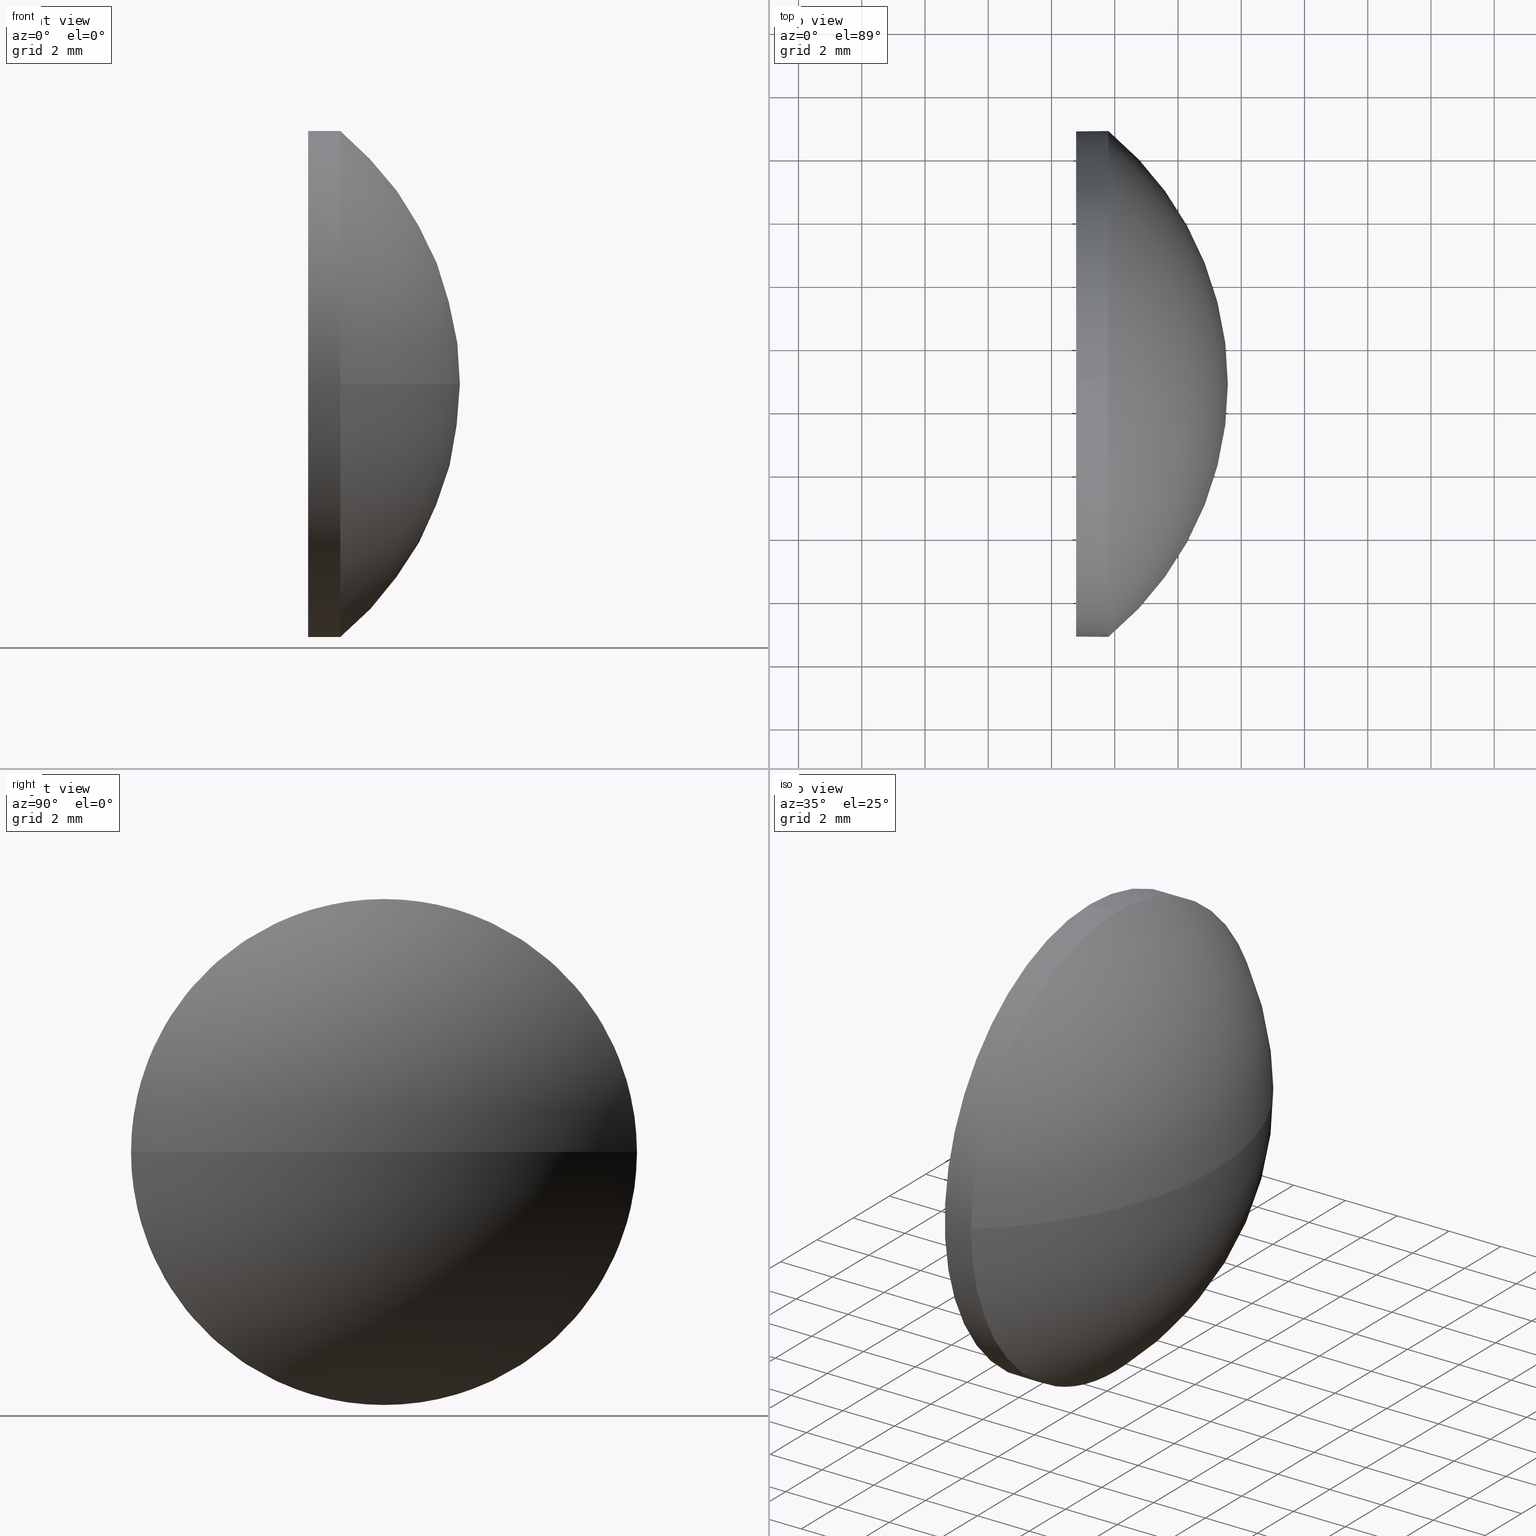
[diagram: canonical four-view strip — front | top / right | iso, engineering-drawing reading convention]
A machine part, canonical four-view strip (front | top / right | iso — engineering-drawing reading convention). The complete STEP part file that produces these views, byte-faithful:
ISO-10303-21;
HEADER;
FILE_DESCRIPTION (( 'STEP AP214' ),
    '1' );
FILE_NAME ('100025.STEP',
    '2019-04-22T07:42:25',
    ( '' ),
    ( '' ),
    'SwSTEP 2.0',
    'SolidWorks 2016',
    '' );
FILE_SCHEMA (( 'AUTOMOTIVE_DESIGN' ));
ENDSEC;

DATA;
#1 = DIRECTION ( 'NONE',  ( -1.000000000000000000, -0.0000000000000000000, -0.0000000000000000000 ) ) ;
#2 = EDGE_CURVE ( 'NONE', #122, #46, #61, .T. ) ;
#3 = ORIENTED_EDGE ( 'NONE', *, *, #84, .T. ) ;
#4 = DIRECTION ( 'NONE',  ( 0.0000000000000000000, 0.0000000000000000000, 1.000000000000000000 ) ) ;
#5 = CARTESIAN_POINT ( 'NONE',  ( 351.7981997499039200, 126.8000505351327700, 0.0000000000000000000 ) ) ;
#6 = CARTESIAN_POINT ( 'NONE',  ( 345.2225912842954500, 126.8000505351327700, 0.0000000000000000000 ) ) ;
#7 = MECHANICAL_DESIGN_GEOMETRIC_PRESENTATION_REPRESENTATION (  '', ( #59 ), #45 ) ;
#8 = ORIENTED_EDGE ( 'NONE', *, *, #113, .F. ) ;
#9 = DIRECTION ( 'NONE',  ( 1.000000000000000000, 0.0000000000000000000, 0.0000000000000000000 ) ) ;
#10 = PRESENTATION_STYLE_ASSIGNMENT (( #115 ) ) ;
#11 = ORIENTED_EDGE ( 'NONE', *, *, #30, .F. ) ;
#12 = FACE_OUTER_BOUND ( 'NONE', #34, .T. ) ;
#13 = PRODUCT_DEFINITION_SHAPE ( 'NONE', 'NONE',  #17 ) ;
#14 = DIRECTION ( 'NONE',  ( 0.0000000000000000000, 0.0000000000000000000, 1.000000000000000000 ) ) ;
#15 = CIRCLE ( 'NONE', #102, 7.999999999999979600 ) ;
#16 = SURFACE_SIDE_STYLE ('',( #125 ) ) ;
#17 = PRODUCT_DEFINITION ( 'δ֪', '', #183, #105 ) ;
#18 = CARTESIAN_POINT ( 'NONE',  ( 350.7781997499039300, 126.8000505351327700, 0.0000000000000000000 ) ) ;
#19 = EDGE_CURVE ( 'NONE', #46, #107, #103, .T. ) ;
#20 = FACE_OUTER_BOUND ( 'NONE', #152, .T. ) ;
#21 = DIRECTION ( 'NONE',  ( -1.000000000000000000, -0.0000000000000000000, -0.0000000000000000000 ) ) ;
#22 = DIRECTION ( 'NONE',  ( -1.000000000000000000, -0.0000000000000000000, -0.0000000000000000000 ) ) ;
#23 = CARTESIAN_POINT ( 'NONE',  ( 351.7981997499039200, 134.8000505351327500, 0.0000000000000000000 ) ) ;
#24 = APPLICATION_CONTEXT ( 'automotive_design' ) ;
#25 = SURFACE_STYLE_FILL_AREA ( #156 ) ;
#26 = VERTEX_POINT ( 'NONE', #60 ) ;
#27 = VECTOR ( 'NONE', #80, 1000.000000000000000 ) ;
#28 = EDGE_CURVE ( 'NONE', #141, #26, #54, .T. ) ;
#29 = ORIENTED_EDGE ( 'NONE', *, *, #70, .F. ) ;
#30 = EDGE_CURVE ( 'NONE', #107, #46, #170, .T. ) ;
#31 = ORIENTED_EDGE ( 'NONE', *, *, #2, .F. ) ;
#32 =( NAMED_UNIT ( * ) PLANE_ANGLE_UNIT ( ) SI_UNIT ( $, .RADIAN. ) );
#33 = CARTESIAN_POINT ( 'NONE',  ( 332.1518566480925200, 126.8000505351327700, -7.999999999999979600 ) ) ;
#34 = EDGE_LOOP ( 'NONE', ( #173, #175, #174, #109, #11 ) ) ;
#35 = CARTESIAN_POINT ( 'NONE',  ( 332.1518566480925200, 126.8000505351327700, 0.0000000000000000000 ) ) ;
#36 = EDGE_CURVE ( 'NONE', #42, #122, #85, .T. ) ;
#37 = PRODUCT_CONTEXT ( 'NONE', #181, 'mechanical' ) ;
#38 = ORIENTED_EDGE ( 'NONE', *, *, #70, .T. ) ;
#39 = EDGE_CURVE ( 'NONE', #26, #42, #15, .T. ) ;
#40 = COLOUR_RGB ( '',1.000000000000000000, 1.000000000000000000, 1.000000000000000000 ) ;
#41 = PRODUCT_RELATED_PRODUCT_CATEGORY ( 'part', '', ( #127 ) ) ;
#42 = VERTEX_POINT ( 'NONE', #146 ) ;
#43 = AXIS2_PLACEMENT_3D ( 'NONE', #134, #50, #52 ) ;
#44 = DIRECTION ( 'NONE',  ( -1.000000000000000000, -0.0000000000000000000, -0.0000000000000000000 ) ) ;
#45 =( GEOMETRIC_REPRESENTATION_CONTEXT ( 3 ) GLOBAL_UNCERTAINTY_ASSIGNED_CONTEXT ( ( #186 ) ) GLOBAL_UNIT_ASSIGNED_CONTEXT ( ( #66, #32, #47 ) ) REPRESENTATION_CONTEXT ( 'NONE', 'WORKASPACE' ) );
#46 = VERTEX_POINT ( 'NONE', #99 ) ;
#47 =( NAMED_UNIT ( * ) SI_UNIT ( $, .STERADIAN. ) SOLID_ANGLE_UNIT ( ) );
#48 = AXIS2_PLACEMENT_3D ( 'NONE', #130, #136, #176 ) ;
#49 = ADVANCED_FACE ( 'NONE', ( #97 ), #147, .T. ) ;
#50 = DIRECTION ( 'NONE',  ( -1.000000000000000000, -0.0000000000000000000, -0.0000000000000000000 ) ) ;
#51 = PRESENTATION_STYLE_ASSIGNMENT (( #124 ) ) ;
#52 = DIRECTION ( 'NONE',  ( 0.0000000000000000000, 0.0000000000000000000, 1.000000000000000000 ) ) ;
#53 = DIRECTION ( 'NONE',  ( 0.0000000000000000000, 0.0000000000000000000, 1.000000000000000000 ) ) ;
#54 = CIRCLE ( 'NONE', #79, 7.999999999999979600 ) ;
#55 = CARTESIAN_POINT ( 'NONE',  ( 332.1518566480925200, 126.8000505351327700, 0.0000000000000000000 ) ) ;
#56 = DIRECTION ( 'NONE',  ( -1.000000000000000000, -0.0000000000000000000, -0.0000000000000000000 ) ) ;
#57 = CIRCLE ( 'NONE', #135, 10.35560846560845700 ) ;
#58 = AXIS2_PLACEMENT_3D ( 'NONE', #18, #166, #167 ) ;
#59 = STYLED_ITEM ( 'NONE', ( #10 ), #88 ) ;
#60 = CARTESIAN_POINT ( 'NONE',  ( 351.7981997499039200, 126.8000505351327700, -7.999999999999979600 ) ) ;
#61 = LINE ( 'NONE', #129, #89 ) ;
#62 = CARTESIAN_POINT ( 'NONE',  ( 350.7781997499039300, 126.8000505351327700, 0.0000000000000000000 ) ) ;
#63 = FILL_AREA_STYLE ('',( #150 ) ) ;
#64 = DIRECTION ( 'NONE',  ( 0.0000000000000000000, 0.0000000000000000000, 1.000000000000000000 ) ) ;
#65 = CARTESIAN_POINT ( 'NONE',  ( 351.7981997499039200, 126.8000505351327700, 0.0000000000000000000 ) ) ;
#66 =( LENGTH_UNIT ( ) NAMED_UNIT ( * ) SI_UNIT ( .MILLI., .METRE. ) );
#67 = EDGE_LOOP ( 'NONE', ( #8, #38, #98, #144 ) ) ;
#68 =( GEOMETRIC_REPRESENTATION_CONTEXT ( 3 ) GLOBAL_UNCERTAINTY_ASSIGNED_CONTEXT ( ( #112 ) ) GLOBAL_UNIT_ASSIGNED_CONTEXT ( ( #106, #81, #121 ) ) REPRESENTATION_CONTEXT ( 'NONE', 'WORKASPACE' ) );
#69 = EDGE_LOOP ( 'NONE', ( #29, #131, #137, #160 ) ) ;
#70 = EDGE_CURVE ( 'NONE', #158, #42, #114, .T. ) ;
#71 = AXIS2_PLACEMENT_3D ( 'NONE', #55, #56, #169 ) ;
#72 = ORIENTED_EDGE ( 'NONE', *, *, #19, .F. ) ;
#73 = ORIENTED_EDGE ( 'NONE', *, *, #28, .T. ) ;
#74 = ORIENTED_EDGE ( 'NONE', *, *, #142, .T. ) ;
#75 = DIRECTION ( 'NONE',  ( -0.0000000000000000000, 0.0000000000000000000, 1.000000000000000000 ) ) ;
#76 = DIRECTION ( 'NONE',  ( -1.000000000000000000, -0.0000000000000000000, -0.0000000000000000000 ) ) ;
#77 = PRESENTATION_LAYER_ASSIGNMENT (  '', '', ( #59 ) ) ;
#78 = CARTESIAN_POINT ( 'NONE',  ( 351.7981997499039200, 126.8000505351327700, 7.999999999999979600 ) ) ;
#79 = AXIS2_PLACEMENT_3D ( 'NONE', #163, #161, #14 ) ;
#80 = DIRECTION ( 'NONE',  ( -1.000000000000000000, -0.0000000000000000000, -0.0000000000000000000 ) ) ;
#81 =( NAMED_UNIT ( * ) PLANE_ANGLE_UNIT ( ) SI_UNIT ( $, .RADIAN. ) );
#82 = STYLED_ITEM ( 'NONE', ( #51 ), #101 ) ;
#83 = SPHERICAL_SURFACE ( 'NONE', #162, 10.35560846560845000 ) ;
#84 = EDGE_CURVE ( 'NONE', #122, #141, #128, .T. ) ;
#85 = CIRCLE ( 'NONE', #95, 7.999999999999979600 ) ;
#86 = DIRECTION ( 'NONE',  ( 0.0000000000000000000, 1.000000000000000000, 1.224646799147352500E-016 ) ) ;
#87 = DIRECTION ( 'NONE',  ( 0.0000000000000000000, 1.000000000000000000, 0.0000000000000000000 ) ) ;
#88 = MANIFOLD_SOLID_BREP ( '��ת1', #185 ) ;
#89 = VECTOR ( 'NONE', #1, 1000.000000000000000 ) ;
#90 = PRESENTATION_LAYER_ASSIGNMENT (  '', '', ( #82 ) ) ;
#91 = LINE ( 'NONE', #33, #27 ) ;
#92 = APPLICATION_PROTOCOL_DEFINITION ( 'draft international standard', 'automotive_design', 1998, #24 ) ;
#93 =( NAMED_UNIT ( * ) SI_UNIT ( $, .STERADIAN. ) SOLID_ANGLE_UNIT ( ) );
#94 = ORIENTED_EDGE ( 'NONE', *, *, #30, .T. ) ;
#95 = AXIS2_PLACEMENT_3D ( 'NONE', #5, #22, #4 ) ;
#96 = AXIS2_PLACEMENT_3D ( 'NONE', #62, #44, #143 ) ;
#97 = FACE_OUTER_BOUND ( 'NONE', #69, .T. ) ;
#98 = ORIENTED_EDGE ( 'NONE', *, *, #39, .F. ) ;
#99 = CARTESIAN_POINT ( 'NONE',  ( 350.7781997499039300, 126.8000505351327700, 7.999999999999979600 ) ) ;
#100 = ADVANCED_FACE ( 'NONE', ( #111 ), #149, .F. ) ;
#101 = ADVANCED_BREP_SHAPE_REPRESENTATION ( '100025', ( #88, #108 ), #68 ) ;
#102 = AXIS2_PLACEMENT_3D ( 'NONE', #118, #153, #133 ) ;
#103 = CIRCLE ( 'NONE', #96, 7.999999999999979600 ) ;
#104 = DIRECTION ( 'NONE',  ( 0.0000000000000000000, 0.0000000000000000000, 1.000000000000000000 ) ) ;
#105 = PRODUCT_DEFINITION_CONTEXT ( 'detailed design', #24, 'design' ) ;
#106 =( LENGTH_UNIT ( ) NAMED_UNIT ( * ) SI_UNIT ( .MILLI., .METRE. ) );
#107 = VERTEX_POINT ( 'NONE', #164 ) ;
#108 = AXIS2_PLACEMENT_3D ( 'NONE', #139, #104, #9 ) ;
#109 = ORIENTED_EDGE ( 'NONE', *, *, #2, .T. ) ;
#110 = MECHANICAL_DESIGN_GEOMETRIC_PRESENTATION_REPRESENTATION (  '', ( #82 ), #120 ) ;
#111 = FACE_OUTER_BOUND ( 'NONE', #184, .T. ) ;
#112 = UNCERTAINTY_MEASURE_WITH_UNIT (LENGTH_MEASURE( 1.000000000000000100E-005 ), #106, 'distance_accuracy_value', 'NONE');
#113 = EDGE_CURVE ( 'NONE', #158, #141, #57, .T. ) ;
#114 = CIRCLE ( 'NONE', #154, 10.35560846560845700 ) ;
#115 = SURFACE_STYLE_USAGE ( .BOTH. , #16 ) ;
#116 = DIRECTION ( 'NONE',  ( 1.000000000000000000, 0.0000000000000000000, 0.0000000000000000000 ) ) ;
#117 = COLOUR_RGB ( '',1.000000000000000000, 1.000000000000000000, 1.000000000000000000 ) ;
#118 = CARTESIAN_POINT ( 'NONE',  ( 351.7981997499039200, 126.8000505351327700, 0.0000000000000000000 ) ) ;
#119 = DIRECTION ( 'NONE',  ( -0.0000000000000000000, 0.0000000000000000000, -1.000000000000000000 ) ) ;
#120 =( GEOMETRIC_REPRESENTATION_CONTEXT ( 3 ) GLOBAL_UNCERTAINTY_ASSIGNED_CONTEXT ( ( #157 ) ) GLOBAL_UNIT_ASSIGNED_CONTEXT ( ( #138, #182, #93 ) ) REPRESENTATION_CONTEXT ( 'NONE', 'WORKASPACE' ) );
#121 =( NAMED_UNIT ( * ) SI_UNIT ( $, .STERADIAN. ) SOLID_ANGLE_UNIT ( ) );
#122 = VERTEX_POINT ( 'NONE', #78 ) ;
#123 = SURFACE_SIDE_STYLE ('',( #25 ) ) ;
#124 = SURFACE_STYLE_USAGE ( .BOTH. , #123 ) ;
#125 = SURFACE_STYLE_FILL_AREA ( #63 ) ;
#126 = AXIS2_PLACEMENT_3D ( 'NONE', #65, #21, #64 ) ;
#127 = PRODUCT ( '100025', '100025', '', ( #37 ) ) ;
#128 = CIRCLE ( 'NONE', #126, 7.999999999999979600 ) ;
#129 = CARTESIAN_POINT ( 'NONE',  ( 332.1518566480925200, 126.8000505351327700, 7.999999999999979600 ) ) ;
#130 = CARTESIAN_POINT ( 'NONE',  ( 345.2225912842954500, 126.8000505351327700, 0.0000000000000000000 ) ) ;
#131 = ORIENTED_EDGE ( 'NONE', *, *, #113, .T. ) ;
#132 = CARTESIAN_POINT ( 'NONE',  ( 355.5781997499038900, 126.8000505351327700, 0.0000000000000000000 ) ) ;
#133 = DIRECTION ( 'NONE',  ( 0.0000000000000000000, 0.0000000000000000000, 1.000000000000000000 ) ) ;
#134 = CARTESIAN_POINT ( 'NONE',  ( 350.7781997499039300, 126.8000505351327700, 0.0000000000000000000 ) ) ;
#135 = AXIS2_PLACEMENT_3D ( 'NONE', #179, #75, #116 ) ;
#136 = DIRECTION ( 'NONE',  ( -0.0000000000000000000, 0.0000000000000000000, -1.000000000000000000 ) ) ;
#137 = ORIENTED_EDGE ( 'NONE', *, *, #84, .F. ) ;
#138 =( LENGTH_UNIT ( ) NAMED_UNIT ( * ) SI_UNIT ( .MILLI., .METRE. ) );
#139 = CARTESIAN_POINT ( 'NONE',  ( 0.0000000000000000000, 0.0000000000000000000, 0.0000000000000000000 ) ) ;
#140 = CYLINDRICAL_SURFACE ( 'NONE', #71, 7.999999999999979600 ) ;
#141 = VERTEX_POINT ( 'NONE', #23 ) ;
#142 = EDGE_CURVE ( 'NONE', #26, #107, #91, .T. ) ;
#143 = DIRECTION ( 'NONE',  ( 0.0000000000000000000, 0.0000000000000000000, 1.000000000000000000 ) ) ;
#144 = ORIENTED_EDGE ( 'NONE', *, *, #28, .F. ) ;
#145 = AXIS2_PLACEMENT_3D ( 'NONE', #35, #76, #53 ) ;
#146 = CARTESIAN_POINT ( 'NONE',  ( 351.7981997499039200, 118.8000505351327800, -9.797174393178807900E-016 ) ) ;
#147 = SPHERICAL_SURFACE ( 'NONE', #48, 10.35560846560845000 ) ;
#148 = FACE_OUTER_BOUND ( 'NONE', #67, .T. ) ;
#149 = PLANE ( 'NONE',  #58 ) ;
#150 = FILL_AREA_STYLE_COLOUR ( '', #40 ) ;
#151 = CARTESIAN_POINT ( 'NONE',  ( 345.2225912842954500, 126.8000505351327700, 0.0000000000000000000 ) ) ;
#152 = EDGE_LOOP ( 'NONE', ( #73, #74, #72, #31, #3 ) ) ;
#153 = DIRECTION ( 'NONE',  ( -1.000000000000000000, -0.0000000000000000000, -0.0000000000000000000 ) ) ;
#154 = AXIS2_PLACEMENT_3D ( 'NONE', #151, #177, #86 ) ;
#155 = FILL_AREA_STYLE_COLOUR ( '', #117 ) ;
#156 = FILL_AREA_STYLE ('',( #155 ) ) ;
#157 = UNCERTAINTY_MEASURE_WITH_UNIT (LENGTH_MEASURE( 1.000000000000000100E-005 ), #138, 'distance_accuracy_value', 'NONE');
#158 = VERTEX_POINT ( 'NONE', #132 ) ;
#159 = CYLINDRICAL_SURFACE ( 'NONE', #145, 7.999999999999979600 ) ;
#160 = ORIENTED_EDGE ( 'NONE', *, *, #36, .F. ) ;
#161 = DIRECTION ( 'NONE',  ( -1.000000000000000000, -0.0000000000000000000, -0.0000000000000000000 ) ) ;
#162 = AXIS2_PLACEMENT_3D ( 'NONE', #6, #119, #87 ) ;
#163 = CARTESIAN_POINT ( 'NONE',  ( 351.7981997499039200, 126.8000505351327700, 0.0000000000000000000 ) ) ;
#164 = CARTESIAN_POINT ( 'NONE',  ( 350.7781997499039300, 126.8000505351327700, -7.999999999999979600 ) ) ;
#165 = ADVANCED_FACE ( 'NONE', ( #148 ), #83, .T. ) ;
#166 = DIRECTION ( 'NONE',  ( 1.000000000000000000, 0.0000000000000000000, 0.0000000000000000000 ) ) ;
#167 = DIRECTION ( 'NONE',  ( 0.0000000000000000000, 0.0000000000000000000, -1.000000000000000000 ) ) ;
#168 = ADVANCED_FACE ( 'NONE', ( #20 ), #159, .T. ) ;
#169 = DIRECTION ( 'NONE',  ( 0.0000000000000000000, 0.0000000000000000000, 1.000000000000000000 ) ) ;
#170 = CIRCLE ( 'NONE', #43, 7.999999999999979600 ) ;
#171 = APPLICATION_PROTOCOL_DEFINITION ( 'draft international standard', 'automotive_design', 1998, #181 ) ;
#172 = SHAPE_DEFINITION_REPRESENTATION ( #13, #101 ) ;
#173 = ORIENTED_EDGE ( 'NONE', *, *, #142, .F. ) ;
#174 = ORIENTED_EDGE ( 'NONE', *, *, #36, .T. ) ;
#175 = ORIENTED_EDGE ( 'NONE', *, *, #39, .T. ) ;
#176 = DIRECTION ( 'NONE',  ( 0.0000000000000000000, 1.000000000000000000, 0.0000000000000000000 ) ) ;
#177 = DIRECTION ( 'NONE',  ( 0.0000000000000000000, 1.224646799147353200E-016, -1.000000000000000000 ) ) ;
#178 = ADVANCED_FACE ( 'NONE', ( #12 ), #140, .T. ) ;
#179 = CARTESIAN_POINT ( 'NONE',  ( 345.2225912842954500, 126.8000505351327700, 0.0000000000000000000 ) ) ;
#180 = ORIENTED_EDGE ( 'NONE', *, *, #19, .T. ) ;
#181 = APPLICATION_CONTEXT ( 'automotive_design' ) ;
#182 =( NAMED_UNIT ( * ) PLANE_ANGLE_UNIT ( ) SI_UNIT ( $, .RADIAN. ) );
#183 = PRODUCT_DEFINITION_FORMATION_WITH_SPECIFIED_SOURCE ( '�κ�', '', #127, .NOT_KNOWN. ) ;
#184 = EDGE_LOOP ( 'NONE', ( #180, #94 ) ) ;
#185 = CLOSED_SHELL ( 'NONE', ( #168, #165, #49, #178, #100 ) ) ;
#186 = UNCERTAINTY_MEASURE_WITH_UNIT (LENGTH_MEASURE( 1.000000000000000100E-005 ), #66, 'distance_accuracy_value', 'NONE');
ENDSEC;
END-ISO-10303-21;
